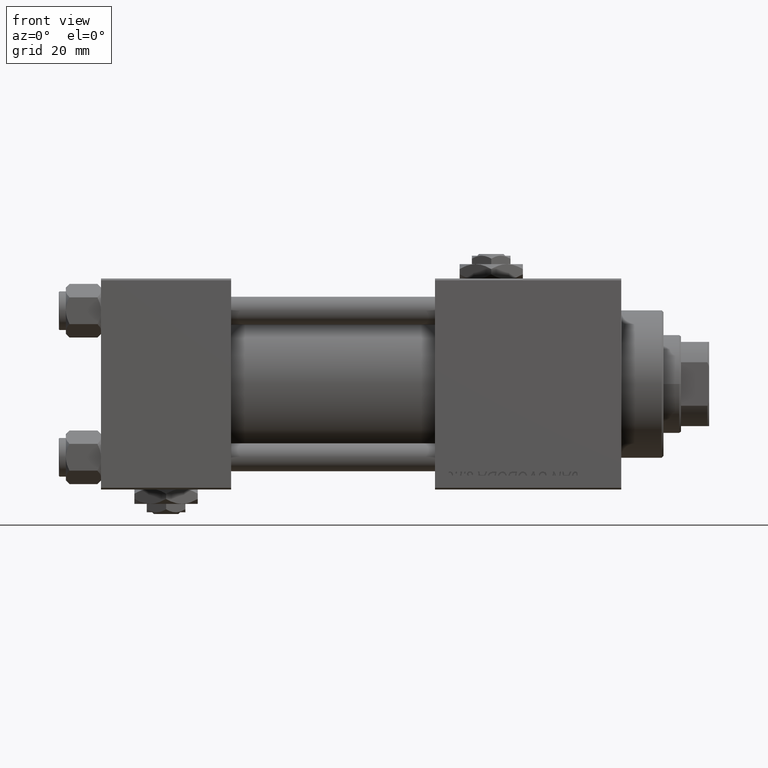
[diagram: clean part render]
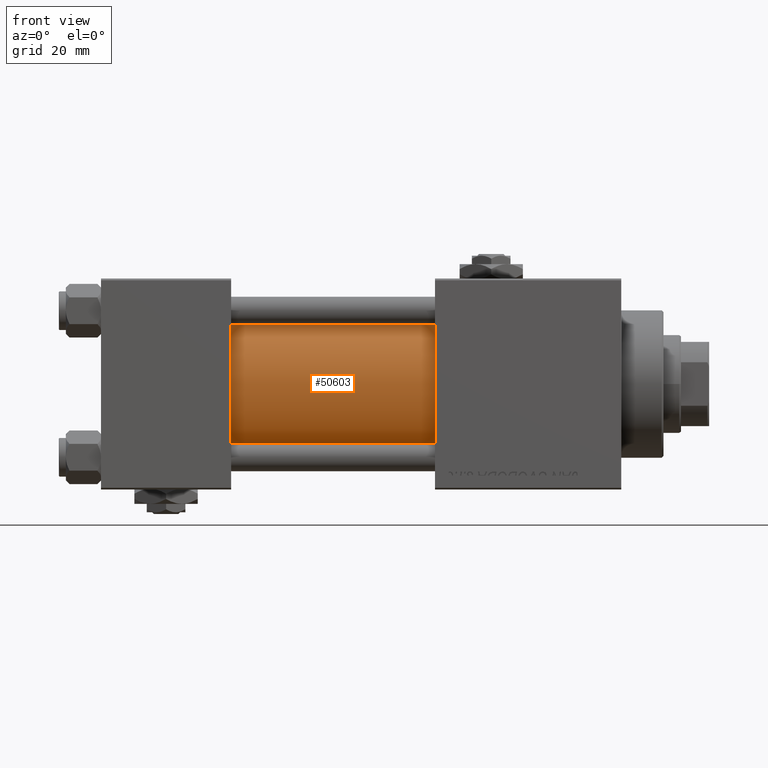
[diagram: same view with one face highlighted and labeled with its STEP entity id]
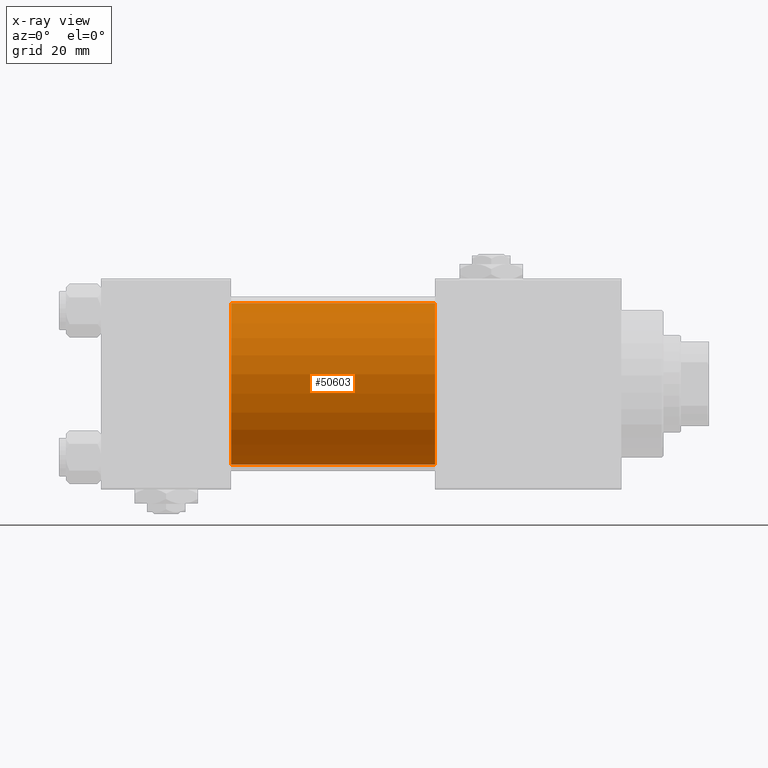
[diagram: x-ray of the same camera — body ghosted, the highlighted face saturated]
A machine part, front view. The second image highlights one B-rep face of the part: STEP entity #50603.
The next image is the same camera in x-ray: the body ghosted, the highlighted face saturated — about 1% of this face is hidden behind the body in this view.
In plain terms, the highlighted cylindrical surface (partial cylindrical patch) has radius 23 mm, axis along (-1, -0, -0).
Its self-contained STEP definition (entity closure, byte-faithful):
#1030 = CARTESIAN_POINT ( 'NONE',  ( 95.00000000000000000, 2.146024240737012665E-16, -23.00000000000000000 ) ) ;
#1152 = DIRECTION ( 'NONE',  ( 1.000000000000000000, 0.000000000000000000, 0.000000000000000000 ) ) ;
#3707 = AXIS2_PLACEMENT_3D ( 'NONE', #42647, #30168, #38893 ) ;
#3930 = CARTESIAN_POINT ( 'NONE',  ( 95.00000000000000000, 2.146024240737012665E-16, -23.00000000000000000 ) ) ;
#5137 = CARTESIAN_POINT ( 'NONE',  ( 95.00000000000000000, -2.602085213965210642E-15, 0.000000000000000000 ) ) ;
#5696 = CARTESIAN_POINT ( 'NONE',  ( 37.00000000000000000, -2.602085213965210642E-15, 23.00000000000000000 ) ) ;
#8498 = VECTOR ( 'NONE', #34968, 1000.000000000000000 ) ;
#9378 = DIRECTION ( 'NONE',  ( 0.000000000000000000, 0.000000000000000000, -1.000000000000000000 ) ) ;
#9382 = EDGE_CURVE ( 'NONE', #19253, #12348, #42684, .T. ) ;
#9719 = ORIENTED_EDGE ( 'NONE', *, *, #19396, .F. ) ;
#9923 = VERTEX_POINT ( 'NONE', #1030 ) ;
#11896 = AXIS2_PLACEMENT_3D ( 'NONE', #5137, #1152, #9378 ) ;
#12348 = VERTEX_POINT ( 'NONE', #5696 ) ;
#13095 = EDGE_CURVE ( 'NONE', #19253, #9923, #42432, .T. ) ;
#14464 = ORIENTED_EDGE ( 'NONE', *, *, #13095, .F. ) ;
#15507 = VECTOR ( 'NONE', #48273, 1000.000000000000000 ) ;
#15584 = CIRCLE ( 'NONE', #3707, 23.00000000000000000 ) ;
#19253 = VERTEX_POINT ( 'NONE', #45409 ) ;
#19396 = EDGE_CURVE ( 'NONE', #9923, #42822, #36326, .T. ) ;
#21456 = EDGE_CURVE ( 'NONE', #12348, #42822, #15584, .T. ) ;
#22378 = CYLINDRICAL_SURFACE ( 'NONE', #23301, 23.00000000000000000 ) ;
#23301 = AXIS2_PLACEMENT_3D ( 'NONE', #50789, #26366, #47582 ) ;
#26366 = DIRECTION ( 'NONE',  ( -1.000000000000000000, -0.000000000000000000, -0.000000000000000000 ) ) ;
#27148 = FACE_OUTER_BOUND ( 'NONE', #50609, .T. ) ;
#30168 = DIRECTION ( 'NONE',  ( 1.000000000000000000, -0.000000000000000000, 0.000000000000000000 ) ) ;
#30351 = CARTESIAN_POINT ( 'NONE',  ( 37.00000000000000000, 2.146024240737012665E-16, -23.00000000000000000 ) ) ;
#34968 = DIRECTION ( 'NONE',  ( -1.000000000000000000, -0.000000000000000000, -0.000000000000000000 ) ) ;
#36326 = LINE ( 'NONE', #3930, #15507 ) ;
#38893 = DIRECTION ( 'NONE',  ( 0.000000000000000000, 0.000000000000000000, 1.000000000000000000 ) ) ;
#42432 = CIRCLE ( 'NONE', #11896, 23.00000000000000000 ) ;
#42647 = CARTESIAN_POINT ( 'NONE',  ( 37.00000000000000000, -2.602085213965210642E-15, 0.000000000000000000 ) ) ;
#42684 = LINE ( 'NONE', #46661, #8498 ) ;
#42822 = VERTEX_POINT ( 'NONE', #30351 ) ;
#45409 = CARTESIAN_POINT ( 'NONE',  ( 95.00000000000000000, -2.602085213965210642E-15, 23.00000000000000000 ) ) ;
#46661 = CARTESIAN_POINT ( 'NONE',  ( 95.00000000000000000, -2.602085213965210642E-15, 23.00000000000000000 ) ) ;
#47582 = DIRECTION ( 'NONE',  ( 0.000000000000000000, 0.000000000000000000, 1.000000000000000000 ) ) ;
#48273 = DIRECTION ( 'NONE',  ( -1.000000000000000000, -0.000000000000000000, -0.000000000000000000 ) ) ;
#49937 = ORIENTED_EDGE ( 'NONE', *, *, #9382, .T. ) ;
#50603 = ADVANCED_FACE ( 'NONE', ( #27148 ), #22378, .T. ) ;
#50609 = EDGE_LOOP ( 'NONE', ( #9719, #14464, #49937, #51707 ) ) ;
#50789 = CARTESIAN_POINT ( 'NONE',  ( 95.00000000000000000, -2.602085213965210642E-15, 0.000000000000000000 ) ) ;
#51707 = ORIENTED_EDGE ( 'NONE', *, *, #21456, .T. ) ;